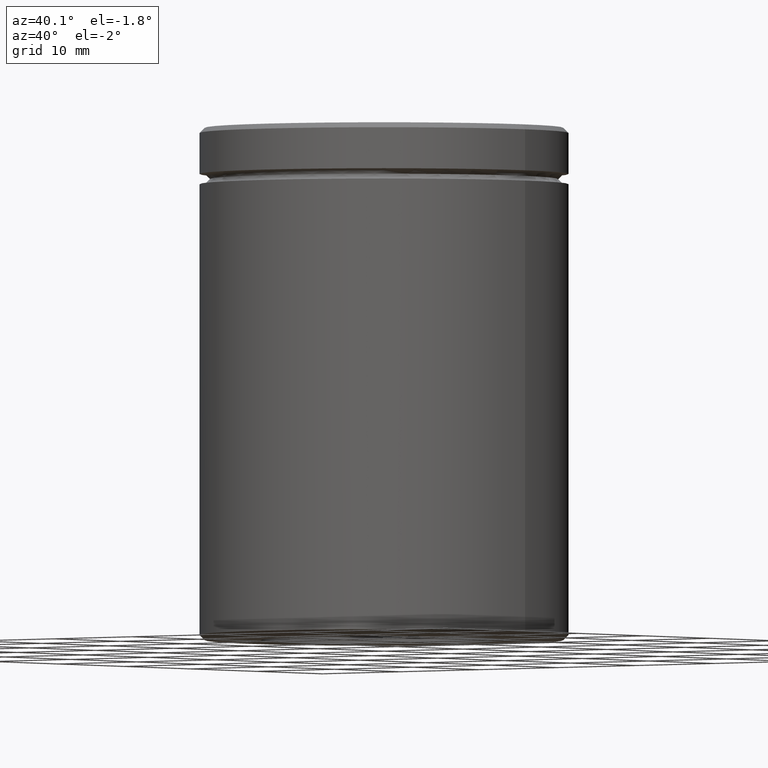
[diagram: clean part render]
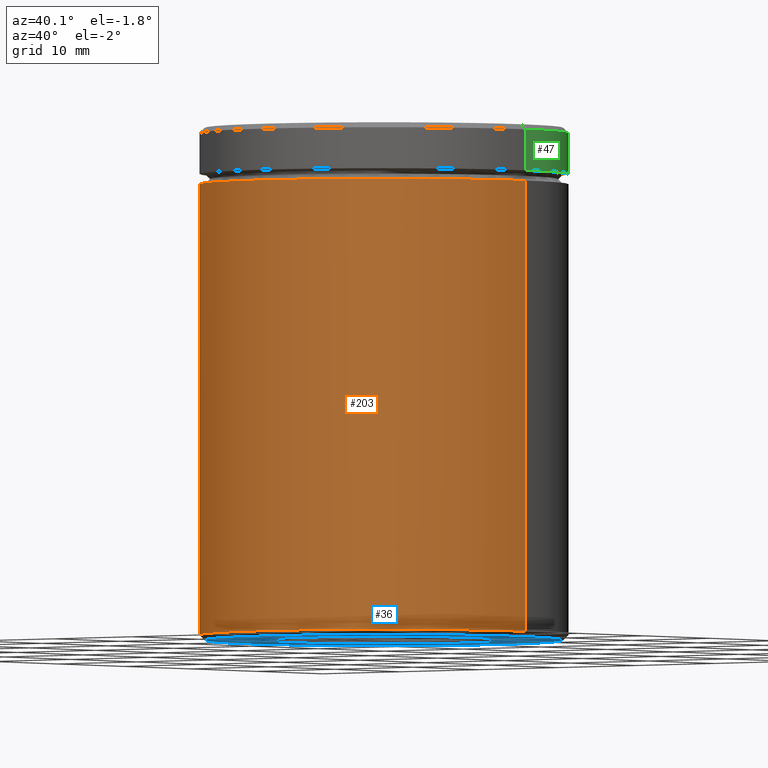
[diagram: same view with three faces highlighted in distinct colors, each labeled with its STEP entity id]
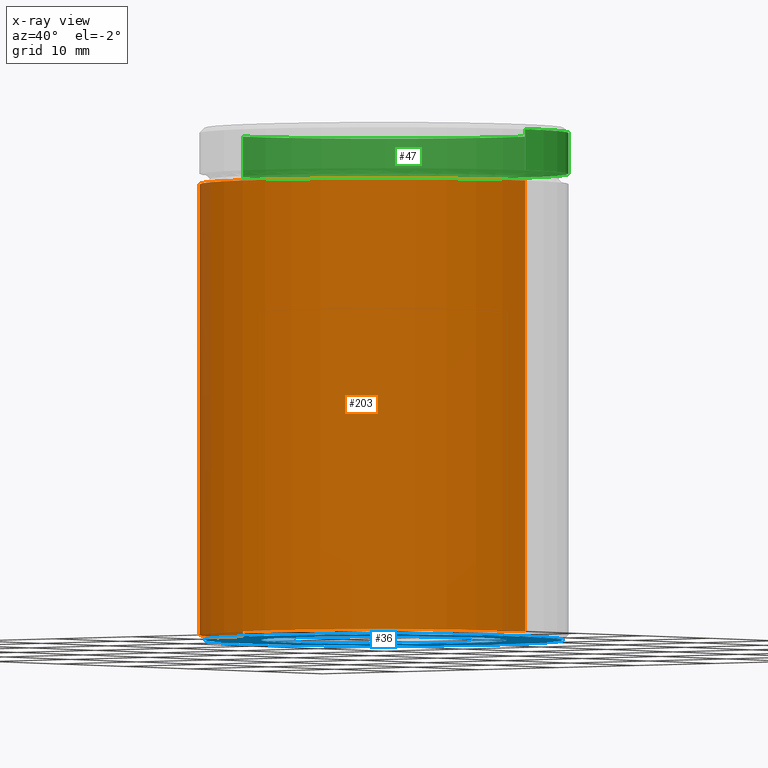
[diagram: x-ray of the same camera — body ghosted, the three highlighted faces saturated]
A machine part, auxiliary view with three faces highlighted in distinct colors.
The next image is the same camera in x-ray (body ghosted, the three faces saturated) — at least one of them is partly hidden behind the body in this view.
Their STEP definitions:

[orange] entity #203 — the highlighted cylindrical surface (partial cylindrical patch) has radius 18 mm, axis along (-0, -0, 1).
#12 = ORIENTED_EDGE ( 'NONE', *, *, #114, .T. ) ;
#18 = DIRECTION ( 'NONE',  ( -0.000000000000000000, -0.000000000000000000, 1.000000000000000000 ) ) ;
#55 = CARTESIAN_POINT ( 'NONE',  ( 0.000000000000000000, 0.000000000000000000, -49.50000000000000000 ) ) ;
#70 = CARTESIAN_POINT ( 'NONE',  ( 18.00000000000000000, 0.000000000000000000, -49.50000000000000000 ) ) ;
#76 = EDGE_CURVE ( 'NONE', #255, #305, #225, .T. ) ;
#78 = DIRECTION ( 'NONE',  ( -0.000000000000000000, -0.000000000000000000, 1.000000000000000000 ) ) ;
#94 = FACE_OUTER_BOUND ( 'NONE', #201, .T. ) ;
#100 = CARTESIAN_POINT ( 'NONE',  ( 0.000000000000000000, 0.000000000000000000, 0.000000000000000000 ) ) ;
#114 = EDGE_CURVE ( 'NONE', #413, #390, #463, .T. ) ;
#119 = CARTESIAN_POINT ( 'NONE',  ( 18.00000000000000000, 0.000000000000000000, 0.000000000000000000 ) ) ;
#141 = ORIENTED_EDGE ( 'NONE', *, *, #452, .F. ) ;
#158 = CARTESIAN_POINT ( 'NONE',  ( -18.00000000000000000, 2.204364238465235428E-15, 0.000000000000000000 ) ) ;
#159 = AXIS2_PLACEMENT_3D ( 'NONE', #100, #18, #416 ) ;
#171 = ORIENTED_EDGE ( 'NONE', *, *, #348, .T. ) ;
#201 = EDGE_LOOP ( 'NONE', ( #141, #12, #171, #281 ) ) ;
#203 = ADVANCED_FACE ( 'NONE', ( #94 ), #287, .T. ) ;
#211 = LINE ( 'NONE', #158, #221 ) ;
#221 = VECTOR ( 'NONE', #295, 1000.000000000000000 ) ;
#225 = CIRCLE ( 'NONE', #509, 18.00000000000000000 ) ;
#255 = VERTEX_POINT ( 'NONE', #367 ) ;
#256 = CARTESIAN_POINT ( 'NONE',  ( -18.00000000000000000, 2.204364238465235428E-15, -49.50000000000000000 ) ) ;
#281 = ORIENTED_EDGE ( 'NONE', *, *, #76, .F. ) ;
#287 = CYLINDRICAL_SURFACE ( 'NONE', #159, 18.00000000000000000 ) ;
#295 = DIRECTION ( 'NONE',  ( -0.000000000000000000, -0.000000000000000000, 1.000000000000000000 ) ) ;
#296 = CARTESIAN_POINT ( 'NONE',  ( 0.000000000000000000, 0.000000000000000000, -5.500000000000000000 ) ) ;
#298 = DIRECTION ( 'NONE',  ( -1.000000000000000000, 0.000000000000000000, 0.000000000000000000 ) ) ;
#305 = VERTEX_POINT ( 'NONE', #414 ) ;
#325 = VECTOR ( 'NONE', #78, 1000.000000000000000 ) ;
#348 = EDGE_CURVE ( 'NONE', #390, #305, #371, .T. ) ;
#367 = CARTESIAN_POINT ( 'NONE',  ( -18.00000000000000000, 2.204364238465235428E-15, -5.500000000000000000 ) ) ;
#368 = DIRECTION ( 'NONE',  ( 1.000000000000000000, 0.000000000000000000, 0.000000000000000000 ) ) ;
#371 = LINE ( 'NONE', #119, #325 ) ;
#390 = VERTEX_POINT ( 'NONE', #70 ) ;
#395 = AXIS2_PLACEMENT_3D ( 'NONE', #55, #514, #298 ) ;
#413 = VERTEX_POINT ( 'NONE', #256 ) ;
#414 = CARTESIAN_POINT ( 'NONE',  ( 18.00000000000000000, 0.000000000000000000, -5.500000000000000000 ) ) ;
#416 = DIRECTION ( 'NONE',  ( 1.000000000000000000, 0.000000000000000000, 0.000000000000000000 ) ) ;
#452 = EDGE_CURVE ( 'NONE', #413, #255, #211, .T. ) ;
#463 = CIRCLE ( 'NONE', #395, 18.00000000000000000 ) ;
#469 = DIRECTION ( 'NONE',  ( -0.000000000000000000, -0.000000000000000000, 1.000000000000000000 ) ) ;
#509 = AXIS2_PLACEMENT_3D ( 'NONE', #296, #469, #368 ) ;
#514 = DIRECTION ( 'NONE',  ( -0.000000000000000000, -0.000000000000000000, 1.000000000000000000 ) ) ;

[blue] entity #36 — the highlighted planar face has unit normal (0, 0, -1).
#19 = DIRECTION ( 'NONE',  ( -1.000000000000000000, 0.000000000000000000, 0.000000000000000000 ) ) ;
#36 = ADVANCED_FACE ( 'NONE', ( #461, #65 ), #372, .T. ) ;
#52 = CIRCLE ( 'NONE', #441, 12.00000000000000178 ) ;
#65 = FACE_BOUND ( 'NONE', #190, .T. ) ;
#80 = CIRCLE ( 'NONE', #172, 12.00000000000000178 ) ;
#91 = AXIS2_PLACEMENT_3D ( 'NONE', #109, #245, #233 ) ;
#95 = ORIENTED_EDGE ( 'NONE', *, *, #145, .F. ) ;
#102 = CIRCLE ( 'NONE', #91, 17.50000000000000000 ) ;
#109 = CARTESIAN_POINT ( 'NONE',  ( 0.000000000000000000, 0.000000000000000000, -50.00000000000000000 ) ) ;
#140 = CIRCLE ( 'NONE', #523, 17.50000000000000000 ) ;
#145 = EDGE_CURVE ( 'NONE', #407, #318, #52, .T. ) ;
#172 = AXIS2_PLACEMENT_3D ( 'NONE', #264, #429, #559 ) ;
#190 = EDGE_LOOP ( 'NONE', ( #95, #442 ) ) ;
#217 = DIRECTION ( 'NONE',  ( -1.000000000000000000, 0.000000000000000000, -0.000000000000000000 ) ) ;
#233 = DIRECTION ( 'NONE',  ( -1.000000000000000000, 0.000000000000000000, 0.000000000000000000 ) ) ;
#236 = AXIS2_PLACEMENT_3D ( 'NONE', #251, #417, #217 ) ;
#245 = DIRECTION ( 'NONE',  ( 0.000000000000000000, 0.000000000000000000, -1.000000000000000000 ) ) ;
#247 = DIRECTION ( 'NONE',  ( 0.000000000000000000, 0.000000000000000000, -1.000000000000000000 ) ) ;
#251 = CARTESIAN_POINT ( 'NONE',  ( 0.000000000000000000, 18.00000000000000000, -50.00000000000000000 ) ) ;
#264 = CARTESIAN_POINT ( 'NONE',  ( 0.000000000000000000, 0.000000000000000000, -50.00000000000000000 ) ) ;
#276 = VERTEX_POINT ( 'NONE', #332 ) ;
#318 = VERTEX_POINT ( 'NONE', #493 ) ;
#322 = EDGE_CURVE ( 'NONE', #345, #276, #102, .T. ) ;
#332 = CARTESIAN_POINT ( 'NONE',  ( -17.50000000000000000, 2.173748068486551641E-15, -50.00000000000000000 ) ) ;
#345 = VERTEX_POINT ( 'NONE', #386 ) ;
#350 = CARTESIAN_POINT ( 'NONE',  ( -12.00000000000000178, 0.000000000000000000, -50.00000000000000000 ) ) ;
#354 = EDGE_CURVE ( 'NONE', #318, #407, #80, .T. ) ;
#356 = ORIENTED_EDGE ( 'NONE', *, *, #562, .T. ) ;
#372 = PLANE ( 'NONE',  #236 ) ;
#386 = CARTESIAN_POINT ( 'NONE',  ( 17.50000000000000000, 0.000000000000000000, -50.00000000000000000 ) ) ;
#407 = VERTEX_POINT ( 'NONE', #350 ) ;
#408 = ORIENTED_EDGE ( 'NONE', *, *, #322, .T. ) ;
#417 = DIRECTION ( 'NONE',  ( 0.000000000000000000, 0.000000000000000000, -1.000000000000000000 ) ) ;
#429 = DIRECTION ( 'NONE',  ( 0.000000000000000000, 0.000000000000000000, -1.000000000000000000 ) ) ;
#436 = EDGE_LOOP ( 'NONE', ( #408, #356 ) ) ;
#441 = AXIS2_PLACEMENT_3D ( 'NONE', #548, #247, #19 ) ;
#442 = ORIENTED_EDGE ( 'NONE', *, *, #354, .F. ) ;
#461 = FACE_OUTER_BOUND ( 'NONE', #436, .T. ) ;
#483 = DIRECTION ( 'NONE',  ( 0.000000000000000000, 0.000000000000000000, -1.000000000000000000 ) ) ;
#485 = CARTESIAN_POINT ( 'NONE',  ( 0.000000000000000000, 0.000000000000000000, -50.00000000000000000 ) ) ;
#487 = DIRECTION ( 'NONE',  ( -1.000000000000000000, 0.000000000000000000, 0.000000000000000000 ) ) ;
#493 = CARTESIAN_POINT ( 'NONE',  ( 12.00000000000000178, 1.469576158976824144E-15, -50.00000000000000000 ) ) ;
#523 = AXIS2_PLACEMENT_3D ( 'NONE', #485, #483, #487 ) ;
#548 = CARTESIAN_POINT ( 'NONE',  ( 0.000000000000000000, 0.000000000000000000, -50.00000000000000000 ) ) ;
#559 = DIRECTION ( 'NONE',  ( -1.000000000000000000, 0.000000000000000000, 0.000000000000000000 ) ) ;
#562 = EDGE_CURVE ( 'NONE', #276, #345, #140, .T. ) ;

[green] entity #47 — the highlighted cylindrical surface (partial cylindrical patch) has radius 18 mm, axis along (-0, -0, 1).
#7 = DIRECTION ( 'NONE',  ( -0.000000000000000000, -0.000000000000000000, 1.000000000000000000 ) ) ;
#13 = LINE ( 'NONE', #500, #28 ) ;
#28 = VECTOR ( 'NONE', #153, 1000.000000000000000 ) ;
#47 = ADVANCED_FACE ( 'NONE', ( #568 ), #403, .T. ) ;
#118 = AXIS2_PLACEMENT_3D ( 'NONE', #129, #7, #438 ) ;
#129 = CARTESIAN_POINT ( 'NONE',  ( 0.000000000000000000, 0.000000000000000000, 0.000000000000000000 ) ) ;
#131 = ORIENTED_EDGE ( 'NONE', *, *, #314, .F. ) ;
#135 = VERTEX_POINT ( 'NONE', #370 ) ;
#148 = EDGE_CURVE ( 'NONE', #309, #135, #268, .T. ) ;
#153 = DIRECTION ( 'NONE',  ( -0.000000000000000000, -0.000000000000000000, 1.000000000000000000 ) ) ;
#155 = ORIENTED_EDGE ( 'NONE', *, *, #542, .T. ) ;
#167 = DIRECTION ( 'NONE',  ( 1.000000000000000000, 0.000000000000000000, 0.000000000000000000 ) ) ;
#169 = DIRECTION ( 'NONE',  ( -0.000000000000000000, -0.000000000000000000, 1.000000000000000000 ) ) ;
#200 = CARTESIAN_POINT ( 'NONE',  ( 0.000000000000000000, 0.000000000000000000, -0.5000000000000108802 ) ) ;
#219 = EDGE_CURVE ( 'NONE', #466, #309, #13, .T. ) ;
#229 = CIRCLE ( 'NONE', #311, 18.00000000000000000 ) ;
#230 = ORIENTED_EDGE ( 'NONE', *, *, #219, .T. ) ;
#257 = CARTESIAN_POINT ( 'NONE',  ( -18.00000000000000000, 2.204364238465235428E-15, -4.500000000000000888 ) ) ;
#268 = CIRCLE ( 'NONE', #543, 18.00000000000000000 ) ;
#279 = ORIENTED_EDGE ( 'NONE', *, *, #148, .T. ) ;
#309 = VERTEX_POINT ( 'NONE', #504 ) ;
#311 = AXIS2_PLACEMENT_3D ( 'NONE', #312, #169, #391 ) ;
#312 = CARTESIAN_POINT ( 'NONE',  ( 0.000000000000000000, 0.000000000000000000, -4.500000000000000888 ) ) ;
#314 = EDGE_CURVE ( 'NONE', #520, #135, #324, .T. ) ;
#324 = LINE ( 'NONE', #409, #355 ) ;
#355 = VECTOR ( 'NONE', #369, 1000.000000000000000 ) ;
#369 = DIRECTION ( 'NONE',  ( -0.000000000000000000, -0.000000000000000000, 1.000000000000000000 ) ) ;
#370 = CARTESIAN_POINT ( 'NONE',  ( 18.00000000000000000, 0.000000000000000000, -0.5000000000000108802 ) ) ;
#373 = DIRECTION ( 'NONE',  ( 0.000000000000000000, 0.000000000000000000, -1.000000000000000000 ) ) ;
#391 = DIRECTION ( 'NONE',  ( 1.000000000000000000, 0.000000000000000000, 0.000000000000000000 ) ) ;
#403 = CYLINDRICAL_SURFACE ( 'NONE', #118, 18.00000000000000000 ) ;
#409 = CARTESIAN_POINT ( 'NONE',  ( 18.00000000000000000, 0.000000000000000000, 0.000000000000000000 ) ) ;
#438 = DIRECTION ( 'NONE',  ( 1.000000000000000000, 0.000000000000000000, 0.000000000000000000 ) ) ;
#466 = VERTEX_POINT ( 'NONE', #257 ) ;
#500 = CARTESIAN_POINT ( 'NONE',  ( -18.00000000000000000, 2.204364238465235428E-15, 0.000000000000000000 ) ) ;
#504 = CARTESIAN_POINT ( 'NONE',  ( -18.00000000000000000, 2.204364238465235428E-15, -0.5000000000000108802 ) ) ;
#513 = EDGE_LOOP ( 'NONE', ( #155, #230, #279, #131 ) ) ;
#520 = VERTEX_POINT ( 'NONE', #567 ) ;
#542 = EDGE_CURVE ( 'NONE', #520, #466, #229, .T. ) ;
#543 = AXIS2_PLACEMENT_3D ( 'NONE', #200, #373, #167 ) ;
#567 = CARTESIAN_POINT ( 'NONE',  ( 18.00000000000000000, 0.000000000000000000, -4.500000000000000888 ) ) ;
#568 = FACE_OUTER_BOUND ( 'NONE', #513, .T. ) ;